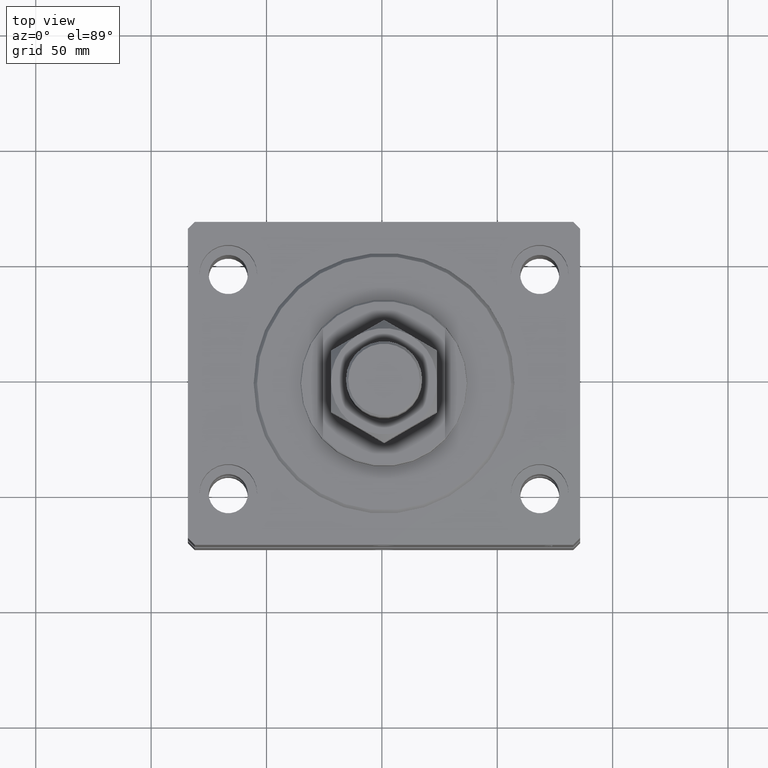
[diagram: clean part render]
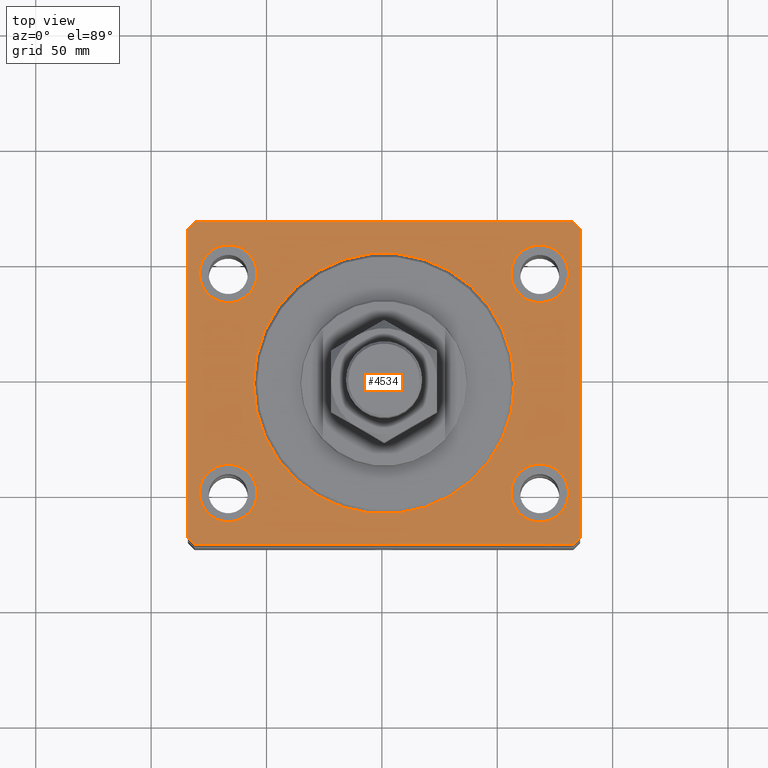
[diagram: same view with one face highlighted and labeled with its STEP entity id]
A machine part, top view. The second image highlights one B-rep face of the part: STEP entity #4534.
In plain terms, the highlighted planar face has unit normal (0, 0, 1).
Its self-contained STEP definition (entity closure, byte-faithful):
#237 = EDGE_CURVE ( 'NONE', #15166, #39734, #11252, .T. ) ;
#301 = CARTESIAN_POINT ( 'NONE',  ( 82.00000000000059686, 70.00000000000002842, 0.000000000000000000 ) ) ;
#330 = DIRECTION ( 'NONE',  ( 1.000000000000000000, 0.000000000000000000, 0.000000000000000000 ) ) ;
#437 = EDGE_CURVE ( 'NONE', #36389, #1873, #18137, .T. ) ;
#1048 = EDGE_CURVE ( 'NONE', #23378, #40297, #1301, .T. ) ;
#1061 = VECTOR ( 'NONE', #37071, 1000.000000000000114 ) ;
#1301 = CIRCLE ( 'NONE', #6672, 56.50000000000000711 ) ;
#1873 = VERTEX_POINT ( 'NONE', #21745 ) ;
#1938 = LINE ( 'NONE', #18787, #31580 ) ;
#2000 = CARTESIAN_POINT ( 'NONE',  ( 82.00000000000001421, -70.00000000000000000, 0.000000000000000000 ) ) ;
#2066 = AXIS2_PLACEMENT_3D ( 'NONE', #27614, #42224, #9403 ) ;
#2113 = CARTESIAN_POINT ( 'NONE',  ( 82.00000000000059686, 70.00000000000002842, 0.000000000000000000 ) ) ;
#2344 = ORIENTED_EDGE ( 'NONE', *, *, #31217, .F. ) ;
#2404 = CARTESIAN_POINT ( 'NONE',  ( 85.00000000000001421, -66.99999999999998579, 0.000000000000000000 ) ) ;
#2598 = CARTESIAN_POINT ( 'NONE',  ( -67.50000000000000000, -47.50000000000000000, 0.000000000000000000 ) ) ;
#2861 = CARTESIAN_POINT ( 'NONE',  ( 56.50000000000000711, 0.000000000000000000, 0.000000000000000000 ) ) ;
#3089 = VERTEX_POINT ( 'NONE', #16298 ) ;
#3296 = AXIS2_PLACEMENT_3D ( 'NONE', #9126, #46252, #31411 ) ;
#4005 = CARTESIAN_POINT ( 'NONE',  ( 67.50000000000000000, 47.50000000000001421, 0.000000000000000000 ) ) ;
#4201 = VECTOR ( 'NONE', #19430, 1000.000000000000000 ) ;
#4395 = DIRECTION ( 'NONE',  ( 1.000000000000000000, 0.000000000000000000, -0.000000000000000000 ) ) ;
#4534 = ADVANCED_FACE ( 'NONE', ( #25513, #40105, #15669, #26210, #14728, #29794 ), #40807, .T. ) ;
#4634 = DIRECTION ( 'NONE',  ( 0.000000000000000000, 0.000000000000000000, 1.000000000000000000 ) ) ;
#4714 = AXIS2_PLACEMENT_3D ( 'NONE', #8084, #29891, #41141 ) ;
#4803 = CARTESIAN_POINT ( 'NONE',  ( 85.00000000000001421, -66.99999999999998579, 0.000000000000000000 ) ) ;
#4966 = ORIENTED_EDGE ( 'NONE', *, *, #28762, .F. ) ;
#5479 = VECTOR ( 'NONE', #45692, 1000.000000000000000 ) ;
#5524 = ORIENTED_EDGE ( 'NONE', *, *, #19956, .T. ) ;
#5555 = ORIENTED_EDGE ( 'NONE', *, *, #1048, .F. ) ;
#6062 = DIRECTION ( 'NONE',  ( 1.000000000000000000, 0.000000000000000000, 0.000000000000000000 ) ) ;
#6196 = VECTOR ( 'NONE', #11956, 1000.000000000000114 ) ;
#6333 = DIRECTION ( 'NONE',  ( 0.000000000000000000, 0.000000000000000000, 1.000000000000000000 ) ) ;
#6672 = AXIS2_PLACEMENT_3D ( 'NONE', #33612, #4634, #330 ) ;
#7119 = CIRCLE ( 'NONE', #13254, 12.49999999999999645 ) ;
#7185 = CIRCLE ( 'NONE', #18651, 12.49999999999999645 ) ;
#7805 = ORIENTED_EDGE ( 'NONE', *, *, #30190, .T. ) ;
#8084 = CARTESIAN_POINT ( 'NONE',  ( -67.50000000000000000, 47.50000000000000000, 0.000000000000000000 ) ) ;
#8449 = CARTESIAN_POINT ( 'NONE',  ( -80.00000000000000000, 47.50000000000000000, 0.000000000000000000 ) ) ;
#8679 = VERTEX_POINT ( 'NONE', #2404 ) ;
#8733 = EDGE_CURVE ( 'NONE', #42808, #3089, #43830, .T. ) ;
#9079 = EDGE_LOOP ( 'NONE', ( #33919, #45735, #39723, #44859, #5524, #7805, #34912, #9108 ) ) ;
#9108 = ORIENTED_EDGE ( 'NONE', *, *, #23979, .T. ) ;
#9126 = CARTESIAN_POINT ( 'NONE',  ( 67.50000000000000000, -47.50000000000000000, 0.000000000000000000 ) ) ;
#9403 = DIRECTION ( 'NONE',  ( 1.000000000000000000, 0.000000000000000000, 0.000000000000000000 ) ) ;
#9750 = DIRECTION ( 'NONE',  ( -0.7071067811865344721, 0.7071067811865606734, 0.000000000000000000 ) ) ;
#10143 = CARTESIAN_POINT ( 'NONE',  ( -80.00000000000000000, -47.50000000000000000, 0.000000000000000000 ) ) ;
#10155 = VECTOR ( 'NONE', #30149, 1000.000000000000000 ) ;
#10301 = CIRCLE ( 'NONE', #46273, 12.49999999999999645 ) ;
#11252 = CIRCLE ( 'NONE', #2066, 12.49999999999999645 ) ;
#11956 = DIRECTION ( 'NONE',  ( 0.7071067811865474617, -0.7071067811865474617, 0.000000000000000000 ) ) ;
#12221 = ORIENTED_EDGE ( 'NONE', *, *, #39643, .F. ) ;
#12662 = EDGE_LOOP ( 'NONE', ( #12221, #5555 ) ) ;
#12908 = AXIS2_PLACEMENT_3D ( 'NONE', #25972, #30270, #4395 ) ;
#13254 = AXIS2_PLACEMENT_3D ( 'NONE', #2598, #24876, #43305 ) ;
#14249 = DIRECTION ( 'NONE',  ( 1.000000000000000000, 0.000000000000000000, 0.000000000000000000 ) ) ;
#14728 = FACE_BOUND ( 'NONE', #12662, .T. ) ;
#15050 = EDGE_LOOP ( 'NONE', ( #31434, #28962 ) ) ;
#15166 = VERTEX_POINT ( 'NONE', #26827 ) ;
#15424 = EDGE_CURVE ( 'NONE', #39734, #15166, #40609, .T. ) ;
#15669 = FACE_BOUND ( 'NONE', #15050, .T. ) ;
#15828 = LINE ( 'NONE', #4803, #4201 ) ;
#16298 = CARTESIAN_POINT ( 'NONE',  ( -85.00000000000001421, -67.00000000000000000, 0.000000000000000000 ) ) ;
#16428 = CIRCLE ( 'NONE', #40903, 56.50000000000000711 ) ;
#16479 = ORIENTED_EDGE ( 'NONE', *, *, #15424, .F. ) ;
#16508 = CARTESIAN_POINT ( 'NONE',  ( -85.00000000000001421, -67.00000000000000000, 0.000000000000000000 ) ) ;
#16778 = DIRECTION ( 'NONE',  ( 1.000000000000000000, 0.000000000000000000, 0.000000000000000000 ) ) ;
#17398 = AXIS2_PLACEMENT_3D ( 'NONE', #22540, #23484, #16778 ) ;
#17703 = VERTEX_POINT ( 'NONE', #35598 ) ;
#17767 = VERTEX_POINT ( 'NONE', #28410 ) ;
#18137 = CIRCLE ( 'NONE', #17398, 12.49999999999999645 ) ;
#18288 = VERTEX_POINT ( 'NONE', #39062 ) ;
#18651 = AXIS2_PLACEMENT_3D ( 'NONE', #4005, #21765, #29419 ) ;
#18787 = CARTESIAN_POINT ( 'NONE',  ( 82.00000000000001421, -70.00000000000000000, 0.000000000000000000 ) ) ;
#19430 = DIRECTION ( 'NONE',  ( 3.935492064902608811E-15, 1.000000000000000000, 0.000000000000000000 ) ) ;
#19612 = CARTESIAN_POINT ( 'NONE',  ( -82.00000000000001421, -70.00000000000000000, 0.000000000000000000 ) ) ;
#19956 = EDGE_CURVE ( 'NONE', #20145, #20474, #30630, .T. ) ;
#19966 = VERTEX_POINT ( 'NONE', #34691 ) ;
#20008 = ORIENTED_EDGE ( 'NONE', *, *, #34959, .F. ) ;
#20145 = VERTEX_POINT ( 'NONE', #37211 ) ;
#20474 = VERTEX_POINT ( 'NONE', #2000 ) ;
#21715 = ORIENTED_EDGE ( 'NONE', *, *, #437, .F. ) ;
#21745 = CARTESIAN_POINT ( 'NONE',  ( -55.00000000000000711, -47.50000000000000000, 0.000000000000000000 ) ) ;
#21765 = DIRECTION ( 'NONE',  ( 0.000000000000000000, 0.000000000000000000, 1.000000000000000000 ) ) ;
#22465 = LINE ( 'NONE', #40897, #1061 ) ;
#22540 = CARTESIAN_POINT ( 'NONE',  ( -67.50000000000000000, -47.50000000000000000, 0.000000000000000000 ) ) ;
#23378 = VERTEX_POINT ( 'NONE', #38848 ) ;
#23456 = LINE ( 'NONE', #16508, #6196 ) ;
#23484 = DIRECTION ( 'NONE',  ( 0.000000000000000000, 0.000000000000000000, 1.000000000000000000 ) ) ;
#23913 = LINE ( 'NONE', #2113, #5479 ) ;
#23979 = EDGE_CURVE ( 'NONE', #19966, #25090, #35862, .T. ) ;
#24280 = CARTESIAN_POINT ( 'NONE',  ( 67.50000000000000000, -47.50000000000000000, 0.000000000000000000 ) ) ;
#24876 = DIRECTION ( 'NONE',  ( 0.000000000000000000, 0.000000000000000000, 1.000000000000000000 ) ) ;
#24912 = DIRECTION ( 'NONE',  ( -1.035655806553317576E-16, -1.000000000000000000, 0.000000000000000000 ) ) ;
#25090 = VERTEX_POINT ( 'NONE', #301 ) ;
#25367 = EDGE_LOOP ( 'NONE', ( #4966, #2344 ) ) ;
#25501 = CARTESIAN_POINT ( 'NONE',  ( 0.000000000000000000, 0.000000000000000000, 0.000000000000000000 ) ) ;
#25513 = FACE_BOUND ( 'NONE', #42160, .T. ) ;
#25972 = CARTESIAN_POINT ( 'NONE',  ( 0.000000000000000000, 0.000000000000000000, 0.000000000000000000 ) ) ;
#26210 = FACE_BOUND ( 'NONE', #43504, .T. ) ;
#26827 = CARTESIAN_POINT ( 'NONE',  ( -55.00000000000000711, 47.50000000000000000, 0.000000000000000000 ) ) ;
#27011 = EDGE_CURVE ( 'NONE', #3089, #20145, #23456, .T. ) ;
#27065 = EDGE_CURVE ( 'NONE', #25090, #18288, #23913, .T. ) ;
#27612 = ORIENTED_EDGE ( 'NONE', *, *, #237, .F. ) ;
#27614 = CARTESIAN_POINT ( 'NONE',  ( -67.50000000000000000, 47.50000000000000000, 0.000000000000000000 ) ) ;
#28410 = CARTESIAN_POINT ( 'NONE',  ( 55.00000000000000711, -47.50000000000000000, 0.000000000000000000 ) ) ;
#28762 = EDGE_CURVE ( 'NONE', #17703, #17767, #37664, .T. ) ;
#28962 = ORIENTED_EDGE ( 'NONE', *, *, #37006, .F. ) ;
#29074 = CARTESIAN_POINT ( 'NONE',  ( -85.00000000000000000, 67.00000000000000000, 0.000000000000000000 ) ) ;
#29419 = DIRECTION ( 'NONE',  ( 1.000000000000000000, 0.000000000000000000, 0.000000000000000000 ) ) ;
#29741 = VECTOR ( 'NONE', #24912, 1000.000000000000000 ) ;
#29794 = FACE_OUTER_BOUND ( 'NONE', #9079, .T. ) ;
#29891 = DIRECTION ( 'NONE',  ( 0.000000000000000000, 0.000000000000000000, 1.000000000000000000 ) ) ;
#30149 = DIRECTION ( 'NONE',  ( 1.000000000000000000, 0.000000000000000000, 0.000000000000000000 ) ) ;
#30190 = EDGE_CURVE ( 'NONE', #20474, #8679, #1938, .T. ) ;
#30270 = DIRECTION ( 'NONE',  ( 0.000000000000000000, 0.000000000000000000, 1.000000000000000000 ) ) ;
#30630 = LINE ( 'NONE', #19612, #10155 ) ;
#31030 = DIRECTION ( 'NONE',  ( 1.000000000000000000, 0.000000000000000000, 0.000000000000000000 ) ) ;
#31158 = DIRECTION ( 'NONE',  ( 0.7071067811865459074, 0.7071067811865491270, 0.000000000000000000 ) ) ;
#31217 = EDGE_CURVE ( 'NONE', #17767, #17703, #45348, .T. ) ;
#31411 = DIRECTION ( 'NONE',  ( 1.000000000000000000, 0.000000000000000000, 0.000000000000000000 ) ) ;
#31434 = ORIENTED_EDGE ( 'NONE', *, *, #39542, .F. ) ;
#31580 = VECTOR ( 'NONE', #31158, 1000.000000000000000 ) ;
#32170 = VECTOR ( 'NONE', #9750, 1000.000000000000000 ) ;
#32802 = CARTESIAN_POINT ( 'NONE',  ( -85.00000000000000000, 67.00000000000000000, 0.000000000000000000 ) ) ;
#33612 = CARTESIAN_POINT ( 'NONE',  ( 0.000000000000000000, 0.000000000000000000, 0.000000000000000000 ) ) ;
#33828 = AXIS2_PLACEMENT_3D ( 'NONE', #24280, #38877, #6062 ) ;
#33919 = ORIENTED_EDGE ( 'NONE', *, *, #27065, .T. ) ;
#34691 = CARTESIAN_POINT ( 'NONE',  ( 85.00000000000055422, 66.99999999999997158, 0.000000000000000000 ) ) ;
#34912 = ORIENTED_EDGE ( 'NONE', *, *, #40030, .T. ) ;
#34959 = EDGE_CURVE ( 'NONE', #1873, #36389, #7119, .T. ) ;
#35598 = CARTESIAN_POINT ( 'NONE',  ( 80.00000000000000000, -47.50000000000000000, 0.000000000000000000 ) ) ;
#35862 = LINE ( 'NONE', #42334, #32170 ) ;
#36389 = VERTEX_POINT ( 'NONE', #10143 ) ;
#37006 = EDGE_CURVE ( 'NONE', #47112, #43631, #7185, .T. ) ;
#37056 = EDGE_CURVE ( 'NONE', #18288, #42808, #22465, .T. ) ;
#37071 = DIRECTION ( 'NONE',  ( -0.7071067811865474617, -0.7071067811865474617, 0.000000000000000000 ) ) ;
#37211 = CARTESIAN_POINT ( 'NONE',  ( -82.00000000000001421, -70.00000000000000000, 0.000000000000000000 ) ) ;
#37434 = CARTESIAN_POINT ( 'NONE',  ( 80.00000000000000000, 47.50000000000001421, 0.000000000000000000 ) ) ;
#37664 = CIRCLE ( 'NONE', #33828, 12.49999999999999645 ) ;
#38247 = CARTESIAN_POINT ( 'NONE',  ( 55.00000000000000711, 47.50000000000001421, 0.000000000000000000 ) ) ;
#38848 = CARTESIAN_POINT ( 'NONE',  ( -56.50000000000000711, 6.919254415182546126E-15, 0.000000000000000000 ) ) ;
#38877 = DIRECTION ( 'NONE',  ( 0.000000000000000000, 0.000000000000000000, 1.000000000000000000 ) ) ;
#39062 = CARTESIAN_POINT ( 'NONE',  ( -82.00000000000000000, 70.00000000000000000, 0.000000000000000000 ) ) ;
#39147 = CARTESIAN_POINT ( 'NONE',  ( 67.50000000000000000, 47.50000000000001421, 0.000000000000000000 ) ) ;
#39542 = EDGE_CURVE ( 'NONE', #43631, #47112, #10301, .T. ) ;
#39643 = EDGE_CURVE ( 'NONE', #40297, #23378, #16428, .T. ) ;
#39723 = ORIENTED_EDGE ( 'NONE', *, *, #8733, .T. ) ;
#39734 = VERTEX_POINT ( 'NONE', #8449 ) ;
#40030 = EDGE_CURVE ( 'NONE', #8679, #19966, #15828, .T. ) ;
#40105 = FACE_BOUND ( 'NONE', #25367, .T. ) ;
#40297 = VERTEX_POINT ( 'NONE', #2861 ) ;
#40609 = CIRCLE ( 'NONE', #4714, 12.49999999999999645 ) ;
#40807 = PLANE ( 'NONE',  #12908 ) ;
#40897 = CARTESIAN_POINT ( 'NONE',  ( -82.00000000000000000, 70.00000000000000000, 0.000000000000000000 ) ) ;
#40903 = AXIS2_PLACEMENT_3D ( 'NONE', #25501, #44163, #14249 ) ;
#41141 = DIRECTION ( 'NONE',  ( 1.000000000000000000, 0.000000000000000000, 0.000000000000000000 ) ) ;
#42160 = EDGE_LOOP ( 'NONE', ( #20008, #21715 ) ) ;
#42224 = DIRECTION ( 'NONE',  ( 0.000000000000000000, 0.000000000000000000, 1.000000000000000000 ) ) ;
#42334 = CARTESIAN_POINT ( 'NONE',  ( 85.00000000000055422, 66.99999999999997158, 0.000000000000000000 ) ) ;
#42808 = VERTEX_POINT ( 'NONE', #29074 ) ;
#43305 = DIRECTION ( 'NONE',  ( 1.000000000000000000, 0.000000000000000000, 0.000000000000000000 ) ) ;
#43504 = EDGE_LOOP ( 'NONE', ( #27612, #16479 ) ) ;
#43631 = VERTEX_POINT ( 'NONE', #37434 ) ;
#43830 = LINE ( 'NONE', #32802, #29741 ) ;
#44163 = DIRECTION ( 'NONE',  ( 0.000000000000000000, 0.000000000000000000, 1.000000000000000000 ) ) ;
#44859 = ORIENTED_EDGE ( 'NONE', *, *, #27011, .T. ) ;
#45348 = CIRCLE ( 'NONE', #3296, 12.49999999999999645 ) ;
#45692 = DIRECTION ( 'NONE',  ( -1.000000000000000000, -1.692413147294439807E-16, 0.000000000000000000 ) ) ;
#45735 = ORIENTED_EDGE ( 'NONE', *, *, #37056, .T. ) ;
#46252 = DIRECTION ( 'NONE',  ( 0.000000000000000000, 0.000000000000000000, 1.000000000000000000 ) ) ;
#46273 = AXIS2_PLACEMENT_3D ( 'NONE', #39147, #6333, #31030 ) ;
#47112 = VERTEX_POINT ( 'NONE', #38247 ) ;